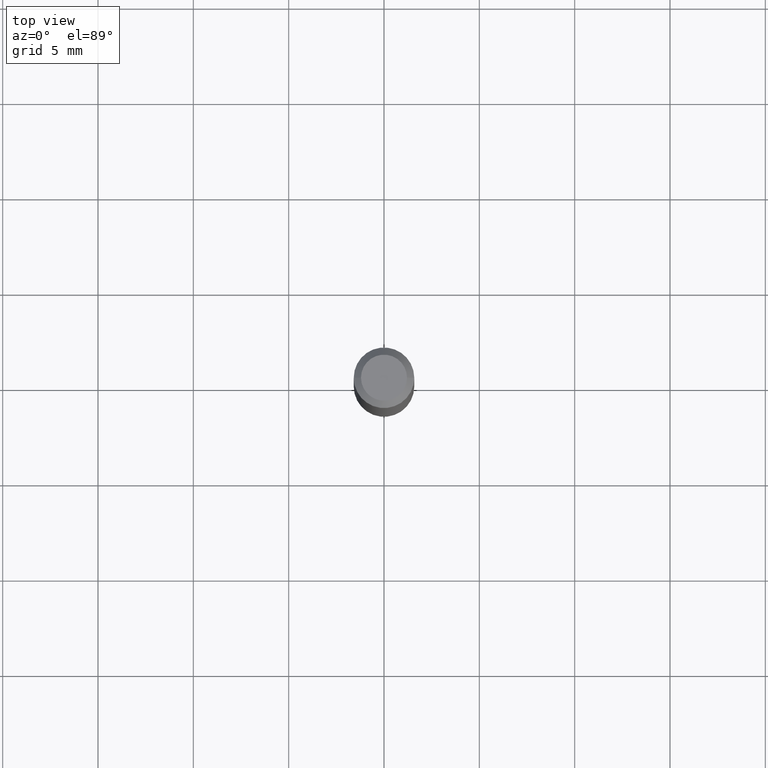
[diagram: clean part render]
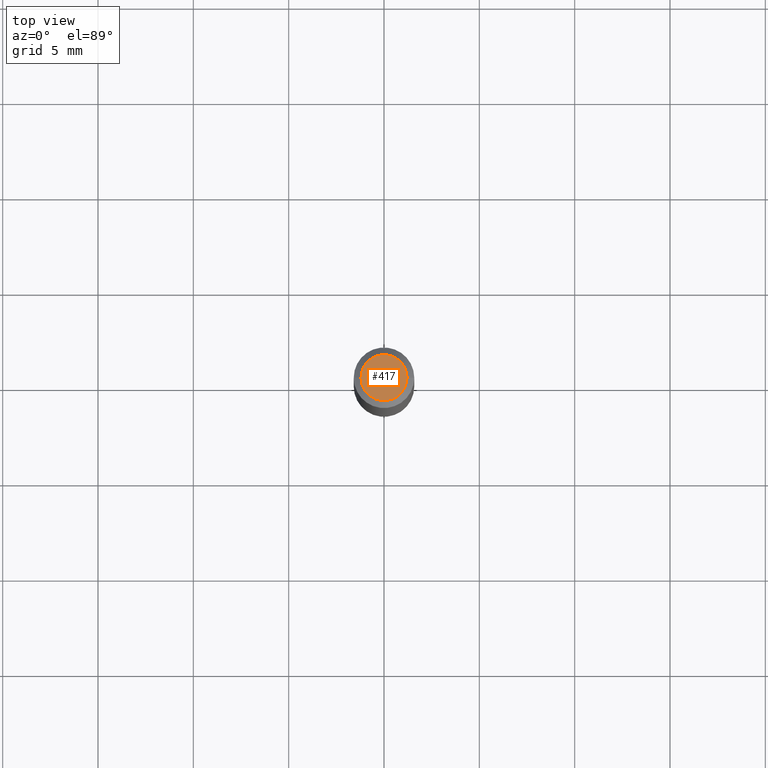
[diagram: same view with one face highlighted and labeled with its STEP entity id]
A machine part, top view. The second image highlights one B-rep face of the part: STEP entity #417.
In plain terms, the highlighted planar face has unit normal (0, -0, -1).
Its self-contained STEP definition (entity closure, byte-faithful):
#1 = CARTESIAN_POINT ( 'NONE',  ( 0.04749999999999999362, -4.035134999187581581E-16, -8.274703207154280181E-17 ) ) ;
#5 = DIRECTION ( 'NONE',  ( 2.438088387897960049E-29, -3.491481338843145188E-15, -1.000000000000000000 ) ) ;
#19 = DIRECTION ( 'NONE',  ( -2.445468806185136597E-29, 3.491481338843145583E-15, 1.000000000000000000 ) ) ;
#26 = DIRECTION ( 'NONE',  ( -2.445468806185136597E-29, 3.491481338843145583E-15, 1.000000000000000000 ) ) ;
#27 = DIRECTION ( 'NONE',  ( 1.000000000000000000, -6.982962677686267499E-15, 4.884662768193073002E-29 ) ) ;
#40 = ORIENTED_EDGE ( 'NONE', *, *, #481, .T. ) ;
#55 = EDGE_CURVE ( 'NONE', #409, #119, #154, .T. ) ;
#89 = CARTESIAN_POINT ( 'NONE',  ( -0.04749999999999999362, 3.578768372314208041E-16, -8.274703207154778150E-17 ) ) ;
#101 = CARTESIAN_POINT ( 'NONE',  ( 3.316907271900976096E-16, 0.04749999999999999362, 3.181781981480094004E-17 ) ) ;
#106 = AXIS2_PLACEMENT_3D ( 'NONE', #289, #26, #203 ) ;
#119 = VERTEX_POINT ( 'NONE', #89 ) ;
#154 = CIRCLE ( 'NONE', #106, 0.04749999999999999362 ) ;
#166 = ORIENTED_EDGE ( 'NONE', *, *, #55, .T. ) ;
#181 = FACE_OUTER_BOUND ( 'NONE', #540, .T. ) ;
#203 = DIRECTION ( 'NONE',  ( 1.000000000000000000, -6.982962677686267499E-15, 4.884662768193073002E-29 ) ) ;
#218 = AXIS2_PLACEMENT_3D ( 'NONE', #466, #19, #27 ) ;
#269 = PLANE ( 'NONE',  #291 ) ;
#289 = CARTESIAN_POINT ( 'NONE',  ( 2.023552857353652888E-45, -2.889097183224559242E-31, -8.274703207154537794E-17 ) ) ;
#291 = AXIS2_PLACEMENT_3D ( 'NONE', #101, #5, #354 ) ;
#354 = DIRECTION ( 'NONE',  ( -1.000000000000000000, 6.982962677686265922E-15, -4.876176775795935793E-29 ) ) ;
#409 = VERTEX_POINT ( 'NONE', #1 ) ;
#417 = ADVANCED_FACE ( 'NONE', ( #181 ), #269, .F. ) ;
#466 = CARTESIAN_POINT ( 'NONE',  ( 2.023552857353652888E-45, -2.889097183224559242E-31, -8.274703207154537794E-17 ) ) ;
#481 = EDGE_CURVE ( 'NONE', #119, #409, #504, .T. ) ;
#504 = CIRCLE ( 'NONE', #218, 0.04749999999999999362 ) ;
#540 = EDGE_LOOP ( 'NONE', ( #40, #166 ) ) ;